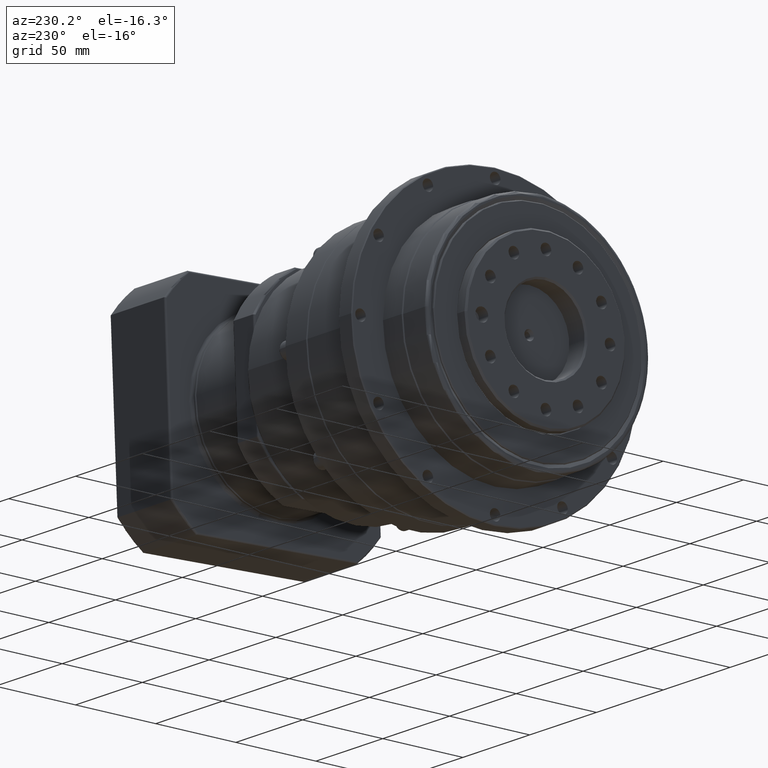
[diagram: clean part render]
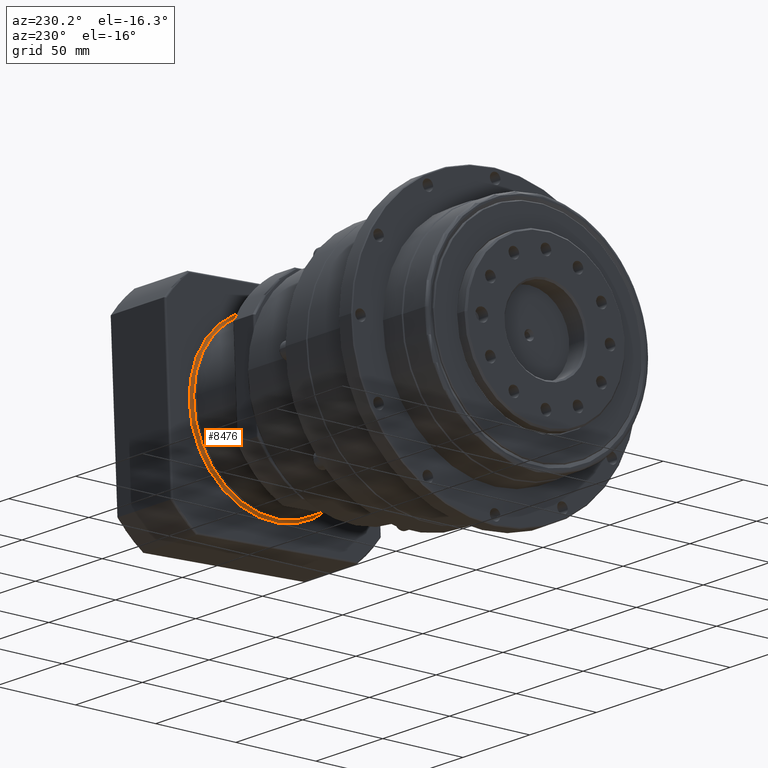
[diagram: same view with one face highlighted and labeled with its STEP entity id]
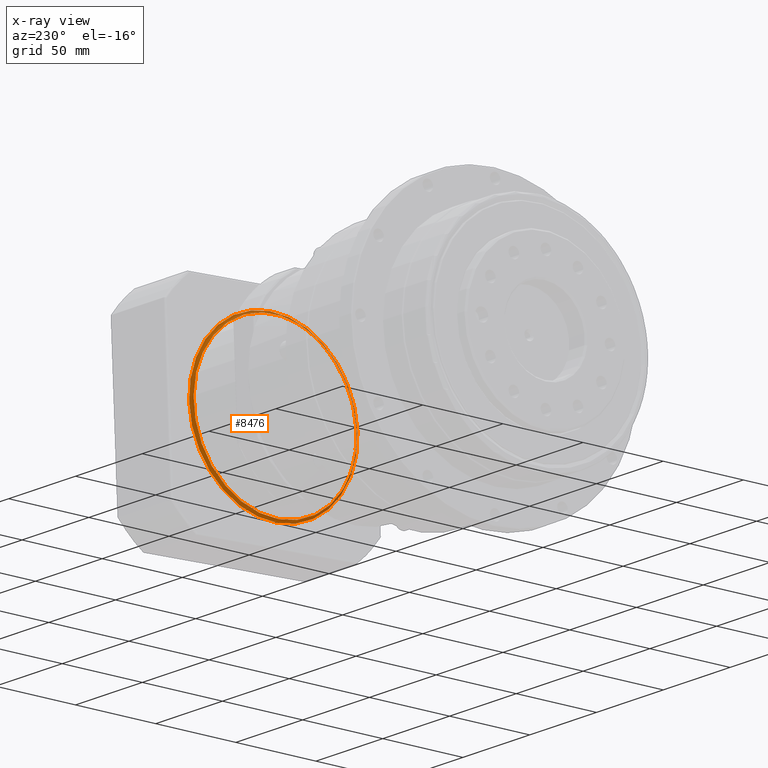
[diagram: x-ray of the same camera — body ghosted, the highlighted face saturated]
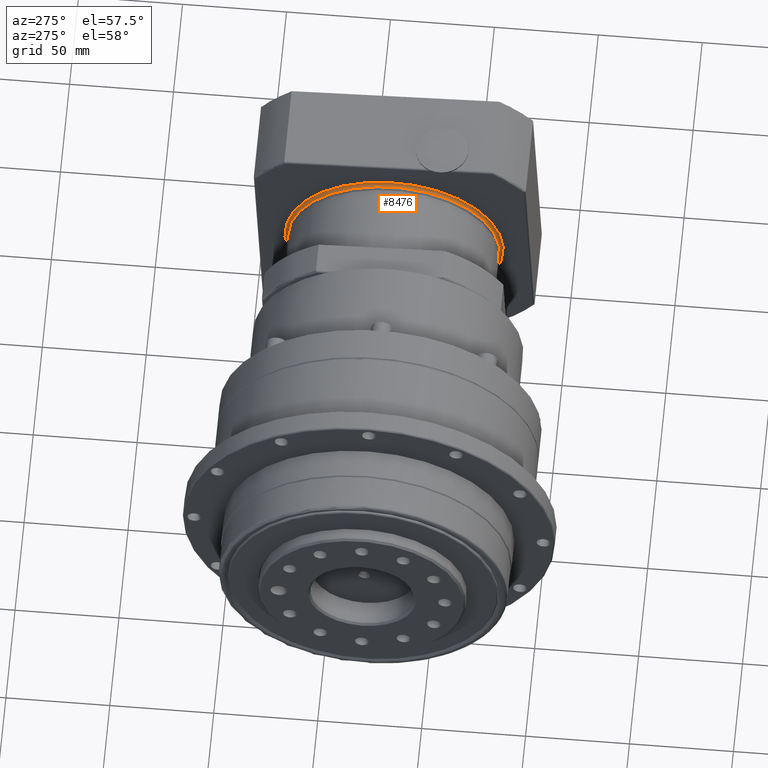
[diagram: same view with one face highlighted and labeled with its STEP entity id]
A machine part, auxiliary view. The second image highlights one B-rep face of the part: STEP entity #8476.
The next image is the same camera in x-ray: the body ghosted, the highlighted face saturated — about 23% of this face is hidden behind the body in this view.
A second angle (auxiliary view) of the same face is appended — the face is thin or edge-on in the first view.
In plain terms, the highlighted toroidal blend (fillet) surface has major radius 52.5 mm and minor (blend) radius 1.5 mm.
Its self-contained STEP definition (entity closure, byte-faithful):
#609=TOROIDAL_SURFACE('',#9382,52.5,1.5);
#848=FACE_BOUND('',#2170,.T.);
#1367=FACE_OUTER_BOUND('',#2169,.T.);
#2169=EDGE_LOOP('',(#6834));
#2170=EDGE_LOOP('',(#6835));
#2839=CIRCLE('',#9383,51.);
#2840=CIRCLE('',#9384,52.5);
#4273=VERTEX_POINT('',#14161);
#4274=VERTEX_POINT('',#14163);
#5196=EDGE_CURVE('',#4273,#4273,#2839,.T.);
#5197=EDGE_CURVE('',#4274,#4274,#2840,.T.);
#6834=ORIENTED_EDGE('',*,*,#5196,.T.);
#6835=ORIENTED_EDGE('',*,*,#5197,.T.);
#8476=ADVANCED_FACE('',(#1367,#848),#609,.F.);
#9382=AXIS2_PLACEMENT_3D('',#14160,#11362,#11363);
#9383=AXIS2_PLACEMENT_3D('',#14162,#11364,#11365);
#9384=AXIS2_PLACEMENT_3D('',#14164,#11366,#11367);
#11362=DIRECTION('center_axis',(1.,1.15011921548548E-15,2.13743306329917E-15));
#11363=DIRECTION('ref_axis',(-2.20399830073735E-15,0.0419137094736798,0.999121234364557));
#11364=DIRECTION('center_axis',(1.,1.15011921548548E-15,2.13743306329917E-15));
#11365=DIRECTION('ref_axis',(-2.18376052323304E-15,0.0419137094736798,0.999121234364557));
#11366=DIRECTION('center_axis',(-1.,-1.15011921548548E-15,-2.13743306329917E-15));
#11367=DIRECTION('ref_axis',(-2.18376052323304E-15,0.0419137094736798,0.999121234364557));
#14160=CARTESIAN_POINT('Origin',(12.0701918997237,-18.0461349565633,-6.49722152941585));
#14161=CARTESIAN_POINT('',(12.0701918997238,-20.183734139721,-57.4524044820083));
#14162=CARTESIAN_POINT('Origin',(12.0701918997237,-18.0461349565633,-6.49722152941585));
#14163=CARTESIAN_POINT('',(13.5701918997238,-20.2466047039315,-58.9510863335551));
#14164=CARTESIAN_POINT('Origin',(13.5701918997237,-18.0461349565633,-6.49722152941585));